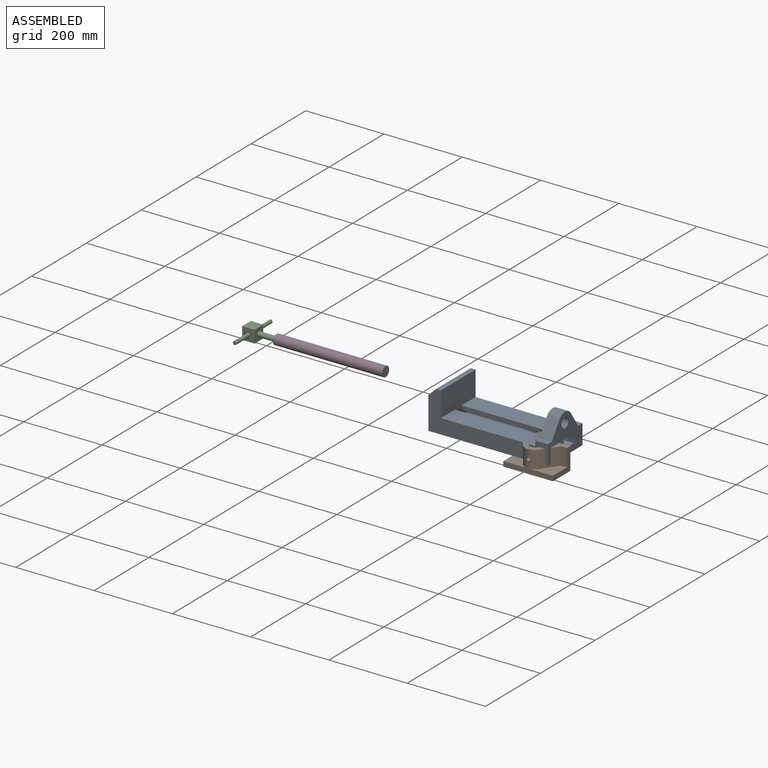
[diagram: assembled view]
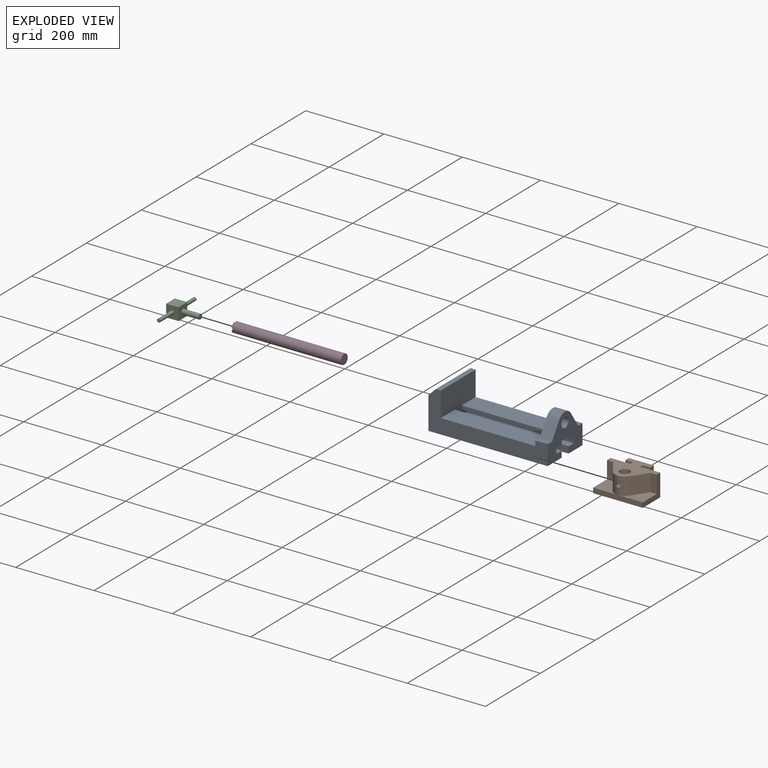
[diagram: exploded view]
GUIDED TOUR — MATED ASSEMBLY (Onshape document be445b46fe18cbd8478f2a0a, AutoMate assembly be445b46fe18cbd8478f2a0a_640654a862c169054bd643f5_fc026e90335b5fe00e9d29f9_default)

This assembly has 4 components, labeled P0..P3 below (a component is one placed occurrence of a part; the same part can appear more than once), held together by 2 mates. A mate is a constraint between two components; its type names the relative motion it leaves free:
  FASTENED — locks the two components together rigidly (no relative motion),
  SLIDER — leaves translation along the listed axis free.
Axis/direction vectors are unit vectors and 'through' points are millimeter coordinates, both in the assembly's world frame.

MATES
  1. SLIDER "Slider 1": P1 <-> P0, axis (1.000, 0.000, 0.000) through (229.29, 55.64, -25.93) mm
  2. FASTENED "Fastened 1": P2 <-> P3, direction (1.000, 0.000, 0.000) through (-488.07, 76.21, -4.20) mm

ASSEMBLY ORDER
  1. P0 — the base component [order verified]
  2. P1 [order verified]
  3. P3 [order verified]
  4. P2 [order verified]
Order-tag legend:
  [order verified] — this step's position reverses a verified removal order: the component was checked to insert without passing through the ones already placed.

Of the 4 components, 3 carry the full construction recipe — the FeatureScript program that regenerates the part's solid from scratch; the rest are supplied as boundary geometry only.
Each toured component is shown spotlighted twice — in the assembled view, then in the exploded view, where a leader line traces a displaced component back to its assembled socket (saturated green if recipe-attached, orange if geometry-only; every other component desaturated gray) — followed by its recipe or geometry summary and the mates that hold it.
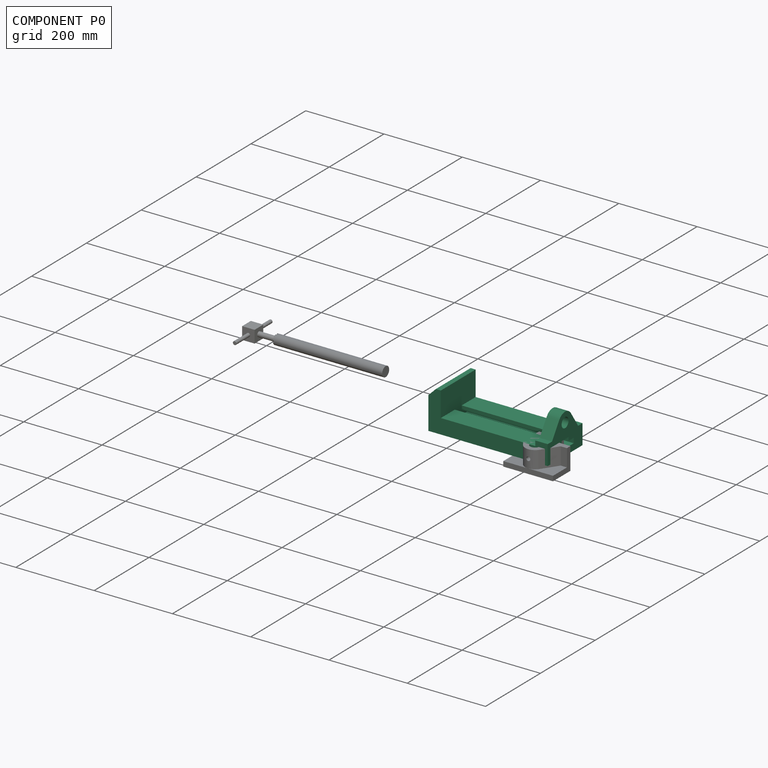
[diagram: component P0 — assembled]
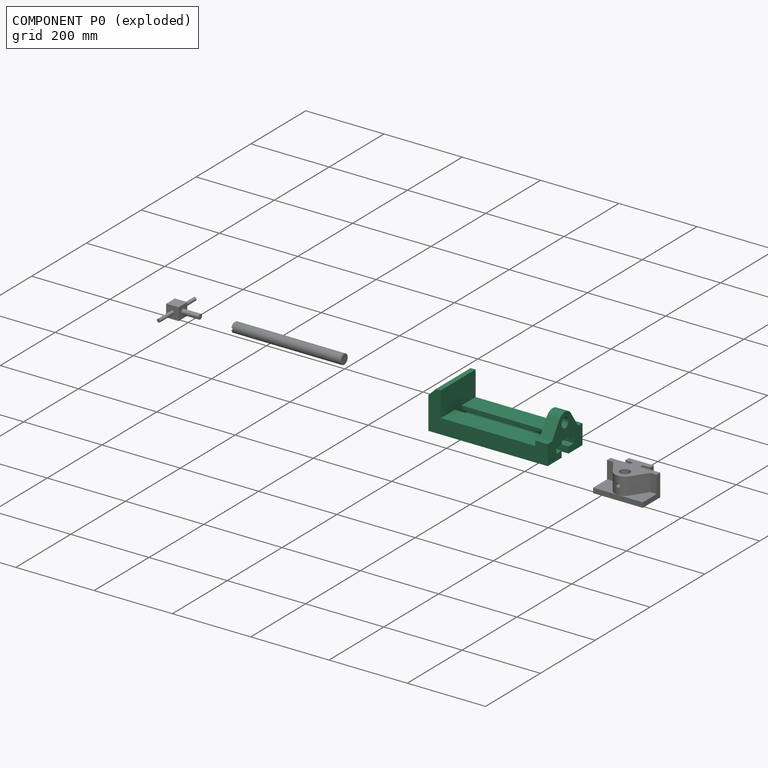
[diagram: component P0 — exploded]
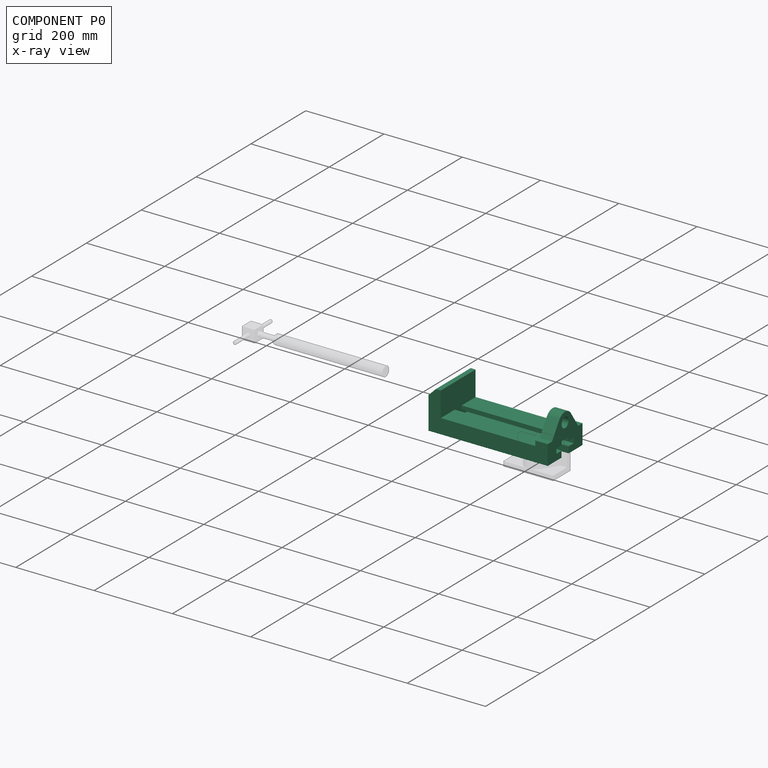
[diagram: component P0 — x-ray view]
COMPONENT P0 — recipe-attached (CADFS 00119810, mesh-verified: the recipe's output STEP matches this component's geometry to below the mesh-comparison resolution (tessellation chordal tolerance ~0.518 mm)).
Held by: SLIDER mate "Slider 1" to P1.
Construction recipe (FeatureScript — the CAD program that rebuilds this solid; sketch coordinates are in the units given by the * unit suffixes, e.g. mm):

FeatureScript 1511;
import(path : "onshape/std/geometry.fs", version : "1511.0");
import(path : "onshape/std/common.fs", version : "1511.0");
const mm = millimeter;
const VERTEX = EntityType.VERTEX;
const EDGE = EntityType.EDGE;
const FACE = EntityType.FACE;
const BODY = EntityType.BODY;
function v(x, y){return vector(x, y);}
function OD(order){return orderDisambiguation(order);}
function OSD(set){return originalSetDisambiguation(set);}
function TD(topology){return topologyDisambiguation(topology);}
function TDD(query){return trueDependencyDisambiguation(query);}
function sQuery(a, b, c) {return sketchEntityQuery(a, b, c);}

annotation { "Feature Type Name" : "Feature", "Feature Type Description" : "" }
export const myFeature = defineFeature(function(context is Context, id is Id, definition is map)
    precondition{}
    {
        {
            var Q0;
            Q0=qCreatedBy(makeId("Front.planeOp"),FACE);
            var sketch = newSketch(context, id + "F0", { "sketchPlane" : qUnion([Q0])});
            skLineSegment(sketch, "E0.bottom", {"start": v(0, 0) * mm, "end": v(304.8, 0) * mm});
            skLineSegment(sketch, "E0.top", {"start": v(0, 101.6) * mm, "end": v(304.8, 101.6) * mm});
            skLineSegment(sketch, "E0.left", {"start": v(0, 0) * mm, "end": v(0, 101.6) * mm});
            skLineSegment(sketch, "E0.right", {"start": v(304.8, 0) * mm, "end": v(304.8, 101.6) * mm});
            skLineSegment(sketch, "E1", {"start": v(31.75, 38.1) * mm, "end": v(273.05, 38.1) * mm});
            skLineSegment(sketch, "E2", {"start": v(31.75, 101.6) * mm, "end": v(31.75, 0) * mm});
            skLineSegment(sketch, "E3", {"start": v(273.05, 101.6) * mm, "end": v(273.05, 0) * mm});
            skLineSegment(sketch, "E4", {"start": v(0, 82.55) * mm, "end": v(19.05, 101.6) * mm});
            skSolve(sketch);
        }
        {
            var Q0;
            {var subQ4=sQuery(id+"F0.wireOp",EDGE,"E0.right");Q0=makeQuery(id+"F0.imprint","IMPRINT",FACE,{"disambiguationData":[TD([[makeQuery(id+"F0.imprint","IMPRINT",EDGE,{"derivedFrom":subQ4}),1.0]])]});}
            var Q1;
            {var subQ7=sQuery(id+"F0.wireOp",EDGE,"E4");Q1=makeQuery(id+"F0.imprint","IMPRINT",FACE,{"disambiguationData":[TD([[makeQuery(id+"F0.imprint","IMPRINT",EDGE,{"derivedFrom":subQ7}),-1.0]])]});}
            var Q2;
            {var subQ5=sQuery(id+"F0.wireOp",EDGE,"E1");Q2=makeQuery(id+"F0.imprint","IMPRINT",FACE,{"disambiguationData":[TD([[makeQuery(id+"F0.imprint","IMPRINT",EDGE,{"derivedFrom":subQ5}),-1.0]])]});}
            extrude(context, id + "F1", {"entities" : qUnion([Q0, Q1, Q2]), "endBound" : BoundingType.SYMMETRIC, "depth" : 127 * mm});
        }
        {
            var Q0;
            Q0=makeQuery(id+"F1.opExtrude","SWEPT_FACE",FACE,{"disambiguationData":[OSD([sQuery(id+"F0.wireOp",EDGE,"E0.right")])]});
            var sketch = newSketch(context, id + "F2", { "sketchPlane" : qUnion([Q0])});
            skLineSegment(sketch, "E5", {"start": v(-12.7, 0) * mm, "end": v(12.7, 0) * mm});
            skLineSegment(sketch, "E6", {"start": v(12.7, 0) * mm, "end": v(12.7, 16.51) * mm});
            skLineSegment(sketch, "E7", {"start": v(12.7, 16.5) * mm, "end": v(31.75, 16.5) * mm});
            skLineSegment(sketch, "E8", {"start": v(31.75, 16.51) * mm, "end": v(31.75, 29.21) * mm});
            skLineSegment(sketch, "E9", {"start": v(31.75, 29.21) * mm, "end": v(12.7, 29.21) * mm});
            skLineSegment(sketch, "E10", {"start": v(12.7, 29.21) * mm, "end": v(12.7, 38.1) * mm});
            skLineSegment(sketch, "E11", {"start": v(12.7, 38.1) * mm, "end": v(-12.7, 38.1) * mm});
            skLineSegment(sketch, "E12", {"start": v(-12.7, 38.1) * mm, "end": v(-12.7, 29.2) * mm});
            skLineSegment(sketch, "E13", {"start": v(-12.7, 29.21) * mm, "end": v(-31.75, 29.2) * mm});
            skLineSegment(sketch, "E14", {"start": v(-31.75, 29.21) * mm, "end": v(-31.75, 16.51) * mm});
            skLineSegment(sketch, "E15", {"start": v(-31.75, 16.5) * mm, "end": v(-12.7, 16.51) * mm});
            skLineSegment(sketch, "E16", {"start": v(-12.7, 16.51) * mm, "end": v(-12.7, 0) * mm});
            skLineSegment(sketch, "E17", {"start": v(0, 101.6) * mm, "end": v(0, 0) * mm, "construction": true});
            skLineSegment(sketch, "E18", {"start": v(-63.5, 0) * mm, "end": v(-63.5, 50.8) * mm});
            skLineSegment(sketch, "E19", {"start": v(-63.5, 50.8) * mm, "end": v(-47.62, 50.8) * mm});
            skLineSegment(sketch, "E20", {"start": v(63.5, 0) * mm, "end": v(63.5, 50.8) * mm});
            skLineSegment(sketch, "E21", {"start": v(63.5, 50.8) * mm, "end": v(47.63, 50.8) * mm});
            skCircle(sketch, "E22", {"center": v(0, 76.2) * mm, "radius": 12.7 * mm});
            skLineSegment(sketch, "E23", {"start": v(-47.63, 50.8) * mm, "end": v(-21.1, 90.35) * mm});
            skLineSegment(sketch, "E24", {"start": v(47.63, 50.8) * mm, "end": v(21.1, 90.35) * mm});
            skArc(sketch, "E25", {"start": v(21.1, 90.35) * mm, "mid": v(0, 101.6) * mm, "end": v(-21.1, 90.35) * mm});
            skSolve(sketch);
        }
        {
            var Q0;
            Q0 = qSketchRegion(id + "F2", true);
            var Q1;
            {var subQ5=sQuery(id+"F2.wireOp",EDGE,"E19");Q1=makeQuery(id+"F2.imprint","IMPRINT",FACE,{"disambiguationData":[TD([[makeQuery(id+"F2.imprint","IMPRINT",EDGE,{"derivedFrom":subQ5}),1.0]])]});}
            var Q2;
            {var subQ4=sQuery(id+"F2.wireOp",EDGE,"E21");Q2=makeQuery(id+"F2.imprint","IMPRINT",FACE,{"disambiguationData":[TD([[makeQuery(id+"F2.imprint","IMPRINT",EDGE,{"derivedFrom":subQ4}),-1.0]])]});}
            extrude(context, id + "F3", {"entities" : qUnion([Q0, Q1, Q2]), "operationType" : NewBodyOperationType.REMOVE, "endBound" : BoundingType.UP_TO_NEXT, "oppositeDirection" : true, "depth" : 25.4 * mm});
        }
        {
            var Q0;
            Q0=makeQuery(id+"F1.opExtrude","SWEPT_FACE",FACE,{"disambiguationData":[OSD([sQuery(id+"F0.wireOp",EDGE,"E0.left")])]});
            var sketch = newSketch(context, id + "F4", { "sketchPlane" : qUnion([Q0])});
            skLineSegment(sketch, "E26", {"start": v(-12.7, 0) * mm, "end": v(-12.7, 16.5) * mm});
            skLineSegment(sketch, "E27", {"start": v(-12.7, 16.5) * mm, "end": v(-31.75, 16.5) * mm});
            skLineSegment(sketch, "E28", {"start": v(-31.75, 16.5) * mm, "end": v(-31.75, 29.21) * mm});
            skLineSegment(sketch, "E29", {"start": v(-31.75, 29.21) * mm, "end": v(-12.7, 29.21) * mm});
            skLineSegment(sketch, "E30", {"start": v(-12.7, 29.21) * mm, "end": v(-12.7, 38.1) * mm});
            skLineSegment(sketch, "E31", {"start": v(-12.7, 38.1) * mm, "end": v(12.7, 38.1) * mm});
            skLineSegment(sketch, "E32", {"start": v(12.7, 38.1) * mm, "end": v(12.7, 29.21) * mm});
            skLineSegment(sketch, "E33", {"start": v(12.7, 29.21) * mm, "end": v(31.75, 29.21) * mm});
            skLineSegment(sketch, "E34", {"start": v(31.75, 29.21) * mm, "end": v(31.75, 16.5) * mm});
            skLineSegment(sketch, "E35", {"start": v(31.75, 16.5) * mm, "end": v(12.7, 16.51) * mm});
            skLineSegment(sketch, "E36", {"start": v(12.7, 16.51) * mm, "end": v(12.7, 0) * mm});
            skLineSegment(sketch, "E37", {"start": v(12.7, 0) * mm, "end": v(-12.7, 0) * mm});
            skSolve(sketch);
        }
        {
            var Q0;
            Q0 = qSketchRegion(id + "F4", true);
            extrude(context, id + "F5", {"entities" : qUnion([Q0]), "operationType" : NewBodyOperationType.ADD, "oppositeDirection" : true, "depth" : 31.75 * mm});
        }
    });
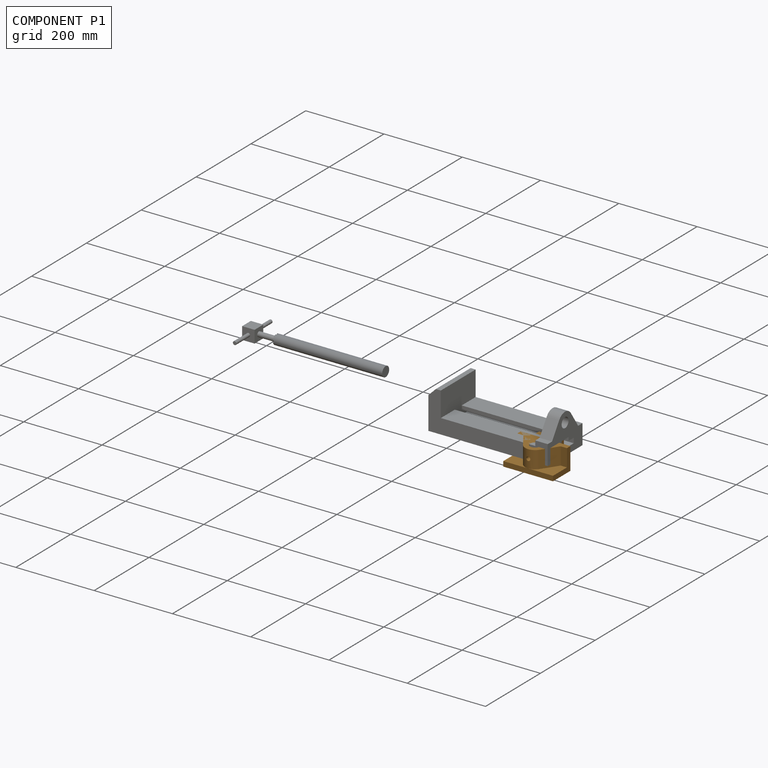
[diagram: component P1 — assembled]
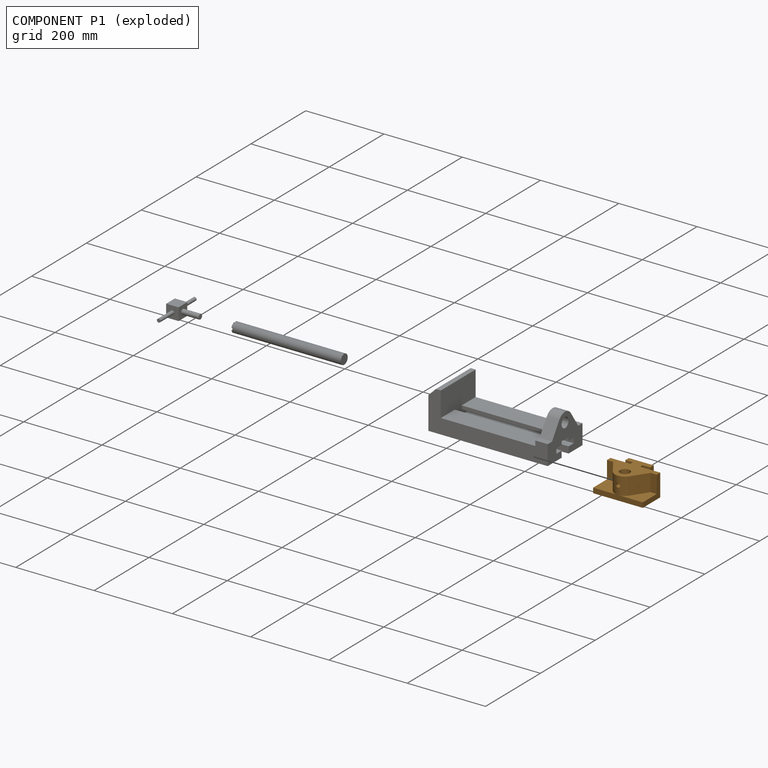
[diagram: component P1 — exploded]
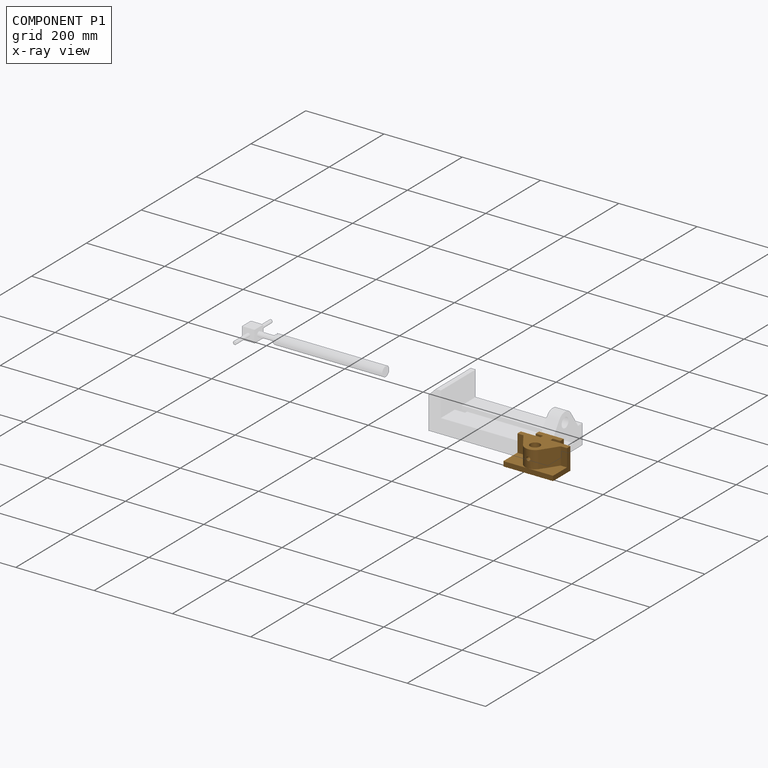
[diagram: component P1 — x-ray view]
COMPONENT P1 — geometry summary (no construction recipe available for this part):
  bounding box: 127.0 x 85.1 x 57.2 mm
  B-rep topology: 1 solid, 23 faces, 126 edges
  volume: 338750 mm^3 (55% of its bounding box)
  symmetry: mirror-symmetric across its x mid-plane
Held by: SLIDER mate "Slider 1" to P0.
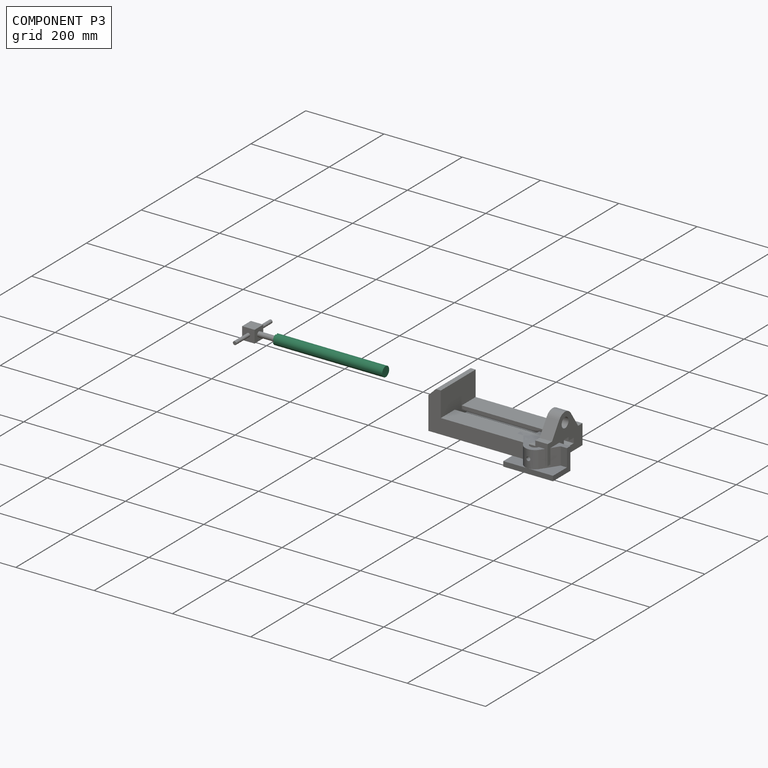
[diagram: component P3 — assembled]
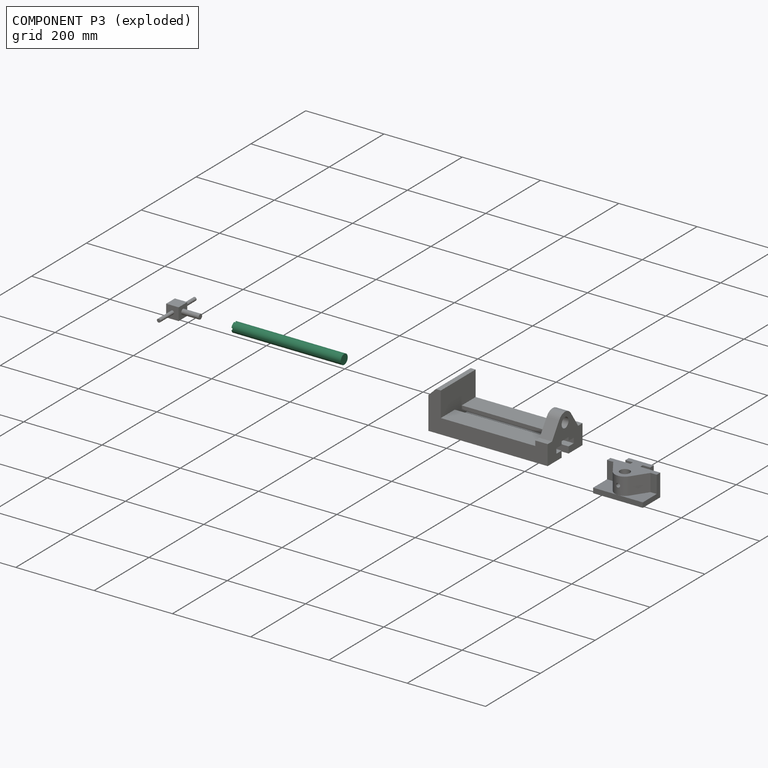
[diagram: component P3 — exploded]
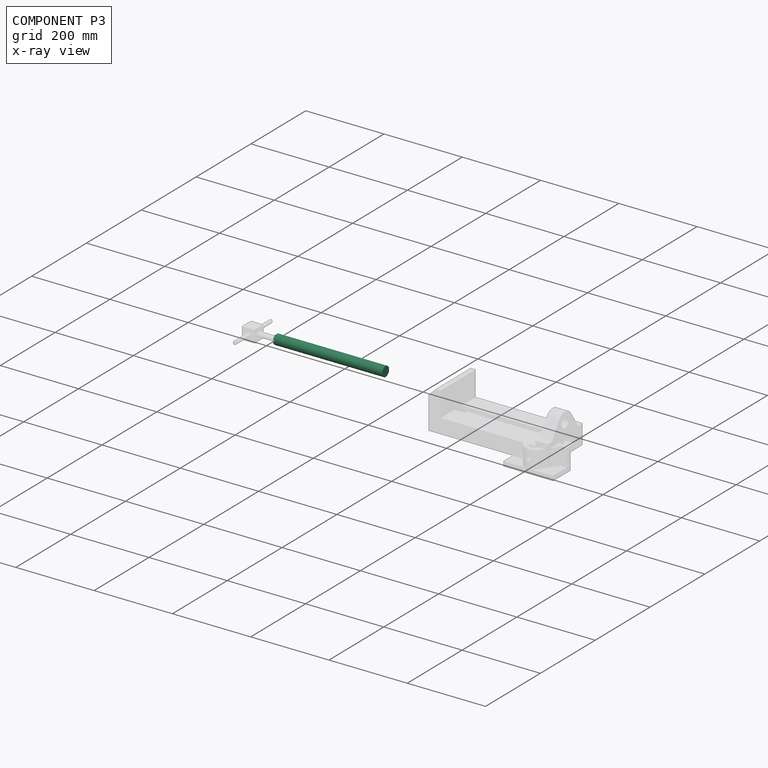
[diagram: component P3 — x-ray view]
COMPONENT P3 — recipe-attached (CADFS 00119812, mesh-verified: the recipe's output STEP matches this component's geometry to below the mesh-comparison resolution (tessellation chordal tolerance ~0.423 mm)).
Held by: FASTENED mate "Fastened 1" to P2.
Construction recipe (FeatureScript — the CAD program that rebuilds this solid; sketch coordinates are in the units given by the * unit suffixes, e.g. mm):

FeatureScript 1511;
import(path : "onshape/std/geometry.fs", version : "1511.0");
import(path : "onshape/std/common.fs", version : "1511.0");
const mm = millimeter;
const VERTEX = EntityType.VERTEX;
const EDGE = EntityType.EDGE;
const FACE = EntityType.FACE;
const BODY = EntityType.BODY;
function v(x, y){return vector(x, y);}
function OD(order){return orderDisambiguation(order);}
function OSD(set){return originalSetDisambiguation(set);}
function TD(topology){return topologyDisambiguation(topology);}
function TDD(query){return trueDependencyDisambiguation(query);}
function sQuery(a, b, c) {return sketchEntityQuery(a, b, c);}

annotation { "Feature Type Name" : "Feature", "Feature Type Description" : "" }
export const myFeature = defineFeature(function(context is Context, id is Id, definition is map)
    precondition{}
    {
        {
            var Q0;
            Q0=qCreatedBy(makeId("Right.planeOp"),FACE);
            var sketch = newSketch(context, id + "F0", { "sketchPlane" : qUnion([Q0])});
            skCircle(sketch, "E0", {"center": v(0, 0) * mm, "radius": 12.7 * mm});
            skCircle(sketch, "E1", {"center": v(0, 0) * mm, "radius": 6.35 * mm});
            skLineSegment(sketch, "E2", {"start": v(-2.54, 12.44) * mm, "end": v(-2.54, 5.82) * mm});
            skLineSegment(sketch, "E3", {"start": v(2.54, 12.44) * mm, "end": v(2.54, 5.82) * mm});
            skLineSegment(sketch, "E4", {"start": v(12.44, 2.54) * mm, "end": v(5.82, 2.54) * mm});
            skLineSegment(sketch, "E5", {"start": v(12.44, -2.54) * mm, "end": v(5.82, -2.54) * mm});
            skLineSegment(sketch, "E6", {"start": v(2.54, -12.44) * mm, "end": v(2.54, -5.82) * mm});
            skLineSegment(sketch, "E7", {"start": v(-2.54, -5.82) * mm, "end": v(-2.54, -12.44) * mm});
            skLineSegment(sketch, "E8", {"start": v(-12.44, 2.54) * mm, "end": v(-5.82, 2.54) * mm});
            skLineSegment(sketch, "E9", {"start": v(-12.44, -2.54) * mm, "end": v(-5.82, -2.54) * mm});
            skSolve(sketch);
        }
        {
            var Q0;
            Q0 = qSketchRegion(id + "F0", true);
            var Q1;
            {var subQ0=sQuery(id+"F0.wireOp",EDGE,"E1");var subQ4=makeQuery(id+"F0.imprint","INTERSECT",VERTEX,{"derivedFrom":[subQ0,sQuery(id+"F0.wireOp",EDGE,"E3")]});Q1=makeQuery(id+"F0.imprint","IMPRINT",FACE,{"disambiguationData":[TD([[makeQuery(id+"F0.imprint","IMPRINT",EDGE,{"disambiguationData":[TD([[subQ4,1.0]])],"derivedFrom":subQ0}),1.0]])]});}
            extrude(context, id + "F1", {"entities" : qUnion([Q0, Q1]), "endBound" : BoundingType.SYMMETRIC, "depth" : 207.9 * mm});
        }
        {
            var Q0;
            Q0=makeQuery(id+"F1.opExtrude","CAP_FACE",FACE,{"disambiguationData":[OSD([sQuery(id+"F0.wireOp",EDGE,"E0")])],"isStart":false});
            var sketch = newSketch(context, id + "F2", { "sketchPlane" : qUnion([Q0])});
            skCircle(sketch, "E10", {"center": v(0, 0) * mm, "radius": 6.35 * mm});
            skSolve(sketch);
        }
        {
            var Q0;
            Q0=makeQuery(id+"F2.imprint","IMPRINT",FACE,{"disambiguationData":[TD([[makeQuery(id+"F2.imprint","IMPRINT",EDGE,{"derivedFrom":sQuery(id+"F2.wireOp",EDGE,"E10")}),-1.0]])]});
            var sketch = newSketch(context, id + "F3", { "sketchPlane" : qUnion([Q0])});
            skCircle(sketch, "E11", {"center": v(0, 0) * mm, "radius": 12.7 * mm});
            skSolve(sketch);
        }
        {
            var Q0;
            Q0 = qSketchRegion(id + "F3", true);
            extrude(context, id + "F4", {"entities" : qUnion([Q0]), "operationType" : NewBodyOperationType.ADD, "depth" : 19.05 * mm});
        }
        {
            var Q0;
            Q0=makeQuery(id+"F4.opExtrude","CAP_FACE",FACE,{"disambiguationData":[OSD([sQuery(id+"F3.wireOp",EDGE,"E11")])],"isStart":false});
            var sketch = newSketch(context, id + "F5", { "sketchPlane" : qUnion([Q0])});
            skCircle(sketch, "E12", {"center": v(0, 0) * mm, "radius": 6.35 * mm});
            skCircle(sketch, "E13", {"center": v(0, 0) * mm, "radius": 12.7 * mm});
            skLineSegment(sketch, "E14", {"start": v(-2.54, 5.82) * mm, "end": v(-2.54, 12.44) * mm});
            skLineSegment(sketch, "E15", {"start": v(2.54, 5.82) * mm, "end": v(2.54, 12.44) * mm});
            skLineSegment(sketch, "E16", {"start": v(12.44, -2.54) * mm, "end": v(5.82, -2.54) * mm});
            skLineSegment(sketch, "E17", {"start": v(2.54, -5.82) * mm, "end": v(2.54, -12.44) * mm});
            skLineSegment(sketch, "E18", {"start": v(-2.54, -5.82) * mm, "end": v(-2.54, -12.44) * mm});
            skLineSegment(sketch, "E19", {"start": v(-12.44, 2.54) * mm, "end": v(-5.82, 2.54) * mm});
            skLineSegment(sketch, "E20", {"start": v(-12.44, -2.54) * mm, "end": v(-5.82, -2.54) * mm});
            skLineSegment(sketch, "E21", {"start": v(5.82, 2.54) * mm, "end": v(12.44, 2.54) * mm});
            skSolve(sketch);
        }
        {
            var Q0;
            {var subQ0=sQuery(id+"F5.wireOp",EDGE,"E12");var subQ4=makeQuery(id+"F5.imprint","INTERSECT",VERTEX,{"derivedFrom":[subQ0,sQuery(id+"F5.wireOp",EDGE,"E15")]});Q0=makeQuery(id+"F5.imprint","IMPRINT",FACE,{"disambiguationData":[TD([[makeQuery(id+"F5.imprint","IMPRINT",EDGE,{"disambiguationData":[TD([[subQ4,1.0]])],"derivedFrom":subQ0}),1.0]])]});}
            extrude(context, id + "F6", {"entities" : qUnion([Q0]), "operationType" : NewBodyOperationType.REMOVE, "oppositeDirection" : true, "depth" : 25.4 * mm});
        }
        {
            var Q0;
            Q0=makeQuery(id+"F4.opExtrude","CAP_FACE",FACE,{"disambiguationData":[OSD([sQuery(id+"F3.wireOp",EDGE,"E11")])],"isStart":false});
            var sketch = newSketch(context, id + "F7", { "sketchPlane" : qUnion([Q0])});
            skLineSegment(sketch, "E22", {"start": v(-2.54, 12.44) * mm, "end": v(-2.54, 5.82) * mm});
            skLineSegment(sketch, "E23", {"start": v(2.54, 12.44) * mm, "end": v(2.54, 5.82) * mm});
            skLineSegment(sketch, "E24", {"start": v(5.82, 2.54) * mm, "end": v(12.44, 2.54) * mm});
            skLineSegment(sketch, "E25", {"start": v(5.82, -2.54) * mm, "end": v(12.44, -2.54) * mm});
            skLineSegment(sketch, "E26", {"start": v(2.54, -5.82) * mm, "end": v(2.54, -12.44) * mm});
            skLineSegment(sketch, "E27", {"start": v(-2.54, -5.82) * mm, "end": v(-2.54, -12.44) * mm});
            skLineSegment(sketch, "E28", {"start": v(-5.82, 2.54) * mm, "end": v(-12.44, 2.54) * mm});
            skLineSegment(sketch, "E29", {"start": v(-5.82, -2.54) * mm, "end": v(-12.44, -2.54) * mm});
            skSolve(sketch);
        }
        {
            var Q0;
            Q0 = qSketchRegion(id + "F7", true);
            var Q1;
            {var subQ0=sQuery(id+"F7.wireOp",EDGE,"E22");Q1=makeQuery(id+"F7.imprint","IMPRINT",FACE,{"disambiguationData":[TD([[makeQuery(id+"F7.imprint","IMPRINT",EDGE,{"derivedFrom":subQ0}),1.0]])]});}
            var Q2;
            {var subQ0=sQuery(id+"F7.wireOp",EDGE,"E24");Q2=makeQuery(id+"F7.imprint","IMPRINT",FACE,{"disambiguationData":[TD([[makeQuery(id+"F7.imprint","IMPRINT",EDGE,{"derivedFrom":subQ0}),-1.0]])]});}
            var Q3;
            {var subQ0=sQuery(id+"F7.wireOp",EDGE,"E26");Q3=makeQuery(id+"F7.imprint","IMPRINT",FACE,{"disambiguationData":[TD([[makeQuery(id+"F7.imprint","IMPRINT",EDGE,{"derivedFrom":subQ0}),-1.0]])]});}
            var Q4;
            {var subQ0=sQuery(id+"F7.wireOp",EDGE,"E28");Q4=makeQuery(id+"F7.imprint","IMPRINT",FACE,{"disambiguationData":[TD([[makeQuery(id+"F7.imprint","IMPRINT",EDGE,{"derivedFrom":subQ0}),1.0]])]});}
            extrude(context, id + "F8", {"entities" : qUnion([Q0, Q1, Q2, Q3, Q4]), "operationType" : NewBodyOperationType.REMOVE, "oppositeDirection" : true, "depth" : 2.54 * mm});
        }
        {
            var Q0;
            Q0=makeQuery(id+"F1.opExtrude","CAP_FACE",FACE,{"disambiguationData":[OSD([sQuery(id+"F0.wireOp",EDGE,"E0")])],"isStart":true});
            var sketch = newSketch(context, id + "F9", { "sketchPlane" : qUnion([Q0])});
            skCircle(sketch, "E30", {"center": v(0, 0) * mm, "radius": 12.7 * mm});
            skSolve(sketch);
        }
        {
            var Q0;
            Q0 = qSketchRegion(id + "F9", true);
            extrude(context, id + "F10", {"entities" : qUnion([Q0]), "operationType" : NewBodyOperationType.ADD, "depth" : 52.45 * mm});
        }
    });
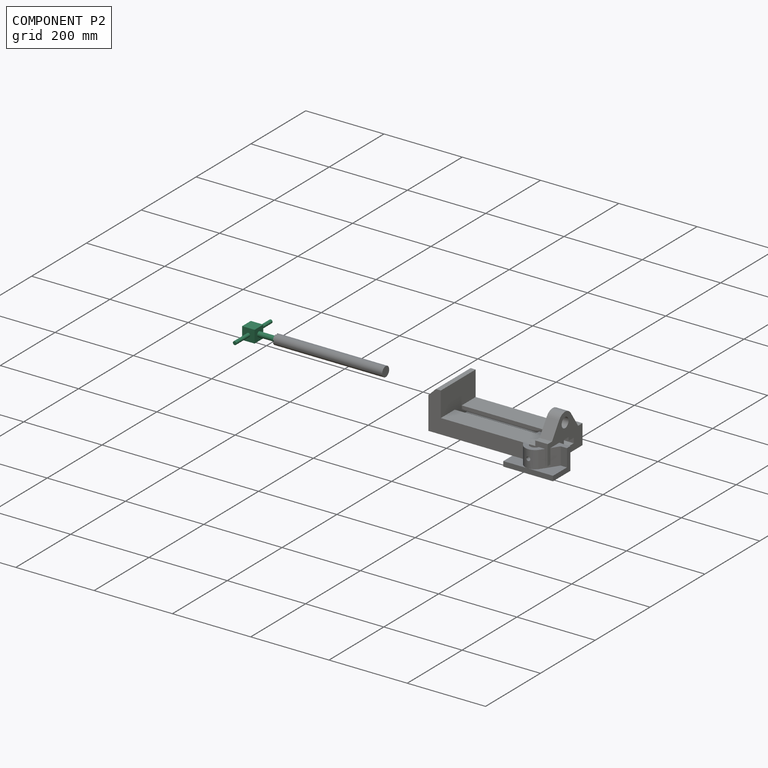
[diagram: component P2 — assembled]
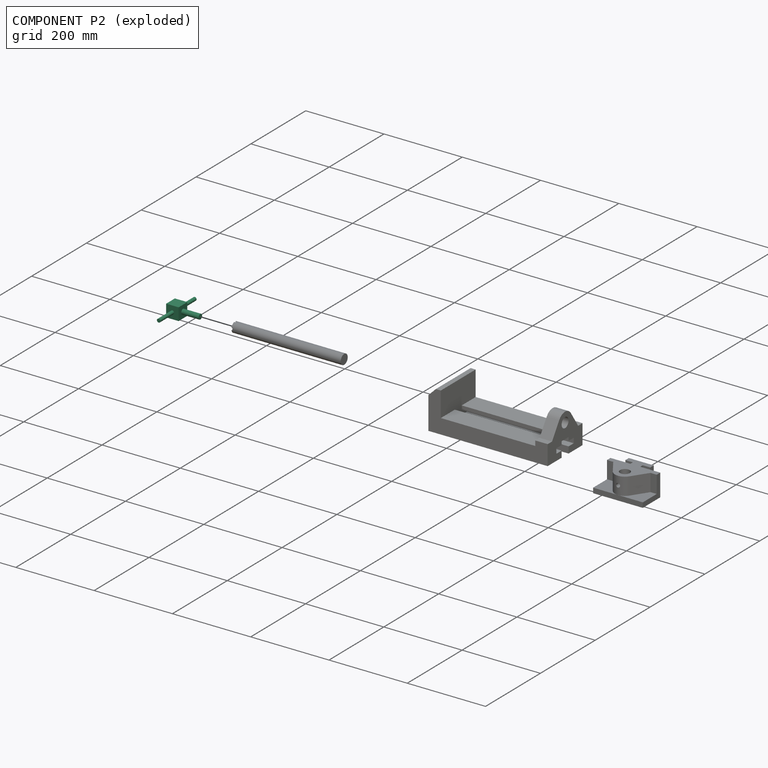
[diagram: component P2 — exploded]
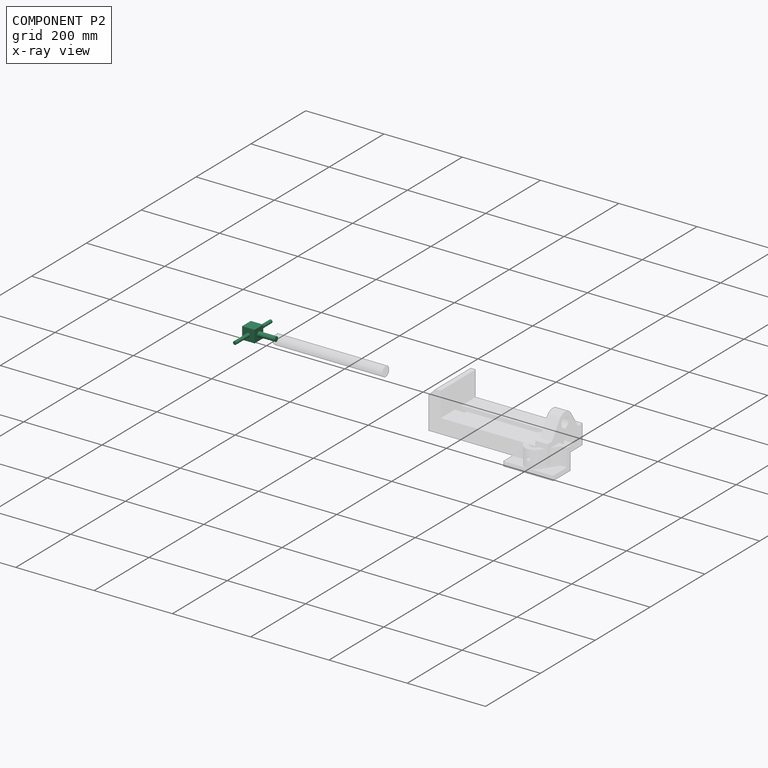
[diagram: component P2 — x-ray view]
COMPONENT P2 — recipe-attached (CADFS 00119813, mesh-verified: the recipe's output STEP matches this component's geometry to below the mesh-comparison resolution (tessellation chordal tolerance ~0.234 mm)).
Held by: FASTENED mate "Fastened 1" to P3.
Construction recipe (FeatureScript — the CAD program that rebuilds this solid; sketch coordinates are in the units given by the * unit suffixes, e.g. mm):

FeatureScript 1511;
import(path : "onshape/std/geometry.fs", version : "1511.0");
import(path : "onshape/std/common.fs", version : "1511.0");
const mm = millimeter;
const VERTEX = EntityType.VERTEX;
const EDGE = EntityType.EDGE;
const FACE = EntityType.FACE;
const BODY = EntityType.BODY;
function v(x, y){return vector(x, y);}
function OD(order){return orderDisambiguation(order);}
function OSD(set){return originalSetDisambiguation(set);}
function TD(topology){return topologyDisambiguation(topology);}
function TDD(query){return trueDependencyDisambiguation(query);}
function sQuery(a, b, c) {return sketchEntityQuery(a, b, c);}

annotation { "Feature Type Name" : "Feature", "Feature Type Description" : "" }
export const myFeature = defineFeature(function(context is Context, id is Id, definition is map)
    precondition{}
    {
        {
            var Q0;
            Q0=qCreatedBy(makeId("Front.planeOp"),FACE);
            var sketch = newSketch(context, id + "F0", { "sketchPlane" : qUnion([Q0])});
            skLineSegment(sketch, "E0.bottom", {"start": v(0, 0) * mm, "end": v(-31.75, 0) * mm});
            skLineSegment(sketch, "E0.top", {"start": v(0, 31.75) * mm, "end": v(-31.75, 31.75) * mm});
            skLineSegment(sketch, "E0.left", {"start": v(0, 0) * mm, "end": v(0, 31.75) * mm});
            skLineSegment(sketch, "E0.right", {"start": v(-31.75, 0) * mm, "end": v(-31.75, 31.75) * mm});
            skSolve(sketch);
        }
        {
            var Q0;
            Q0 = qSketchRegion(id + "F0", true);
            extrude(context, id + "F1", {"entities" : qUnion([Q0]), "endBound" : BoundingType.SYMMETRIC, "depth" : 31.75 * mm});
        }
        {
            var Q0;
            Q0=makeQuery(id+"F1.opExtrude","SWEPT_FACE",FACE,{"disambiguationData":[OSD([sQuery(id+"F0.wireOp",EDGE,"E0.left")])]});
            var sketch = newSketch(context, id + "F2", { "sketchPlane" : qUnion([Q0])});
            skCircle(sketch, "E1", {"center": v(0, 15.88) * mm, "radius": 4.45 * mm});
            skSolve(sketch);
        }
        {
            var Q0;
            Q0=makeQuery(id+"F2.imprint","IMPRINT",FACE,{"disambiguationData":[TD([[makeQuery(id+"F2.imprint","IMPRINT",EDGE,{"derivedFrom":sQuery(id+"F2.wireOp",EDGE,"E1")}),1.0]])]});
            extrude(context, id + "F3", {"entities" : qUnion([Q0]), "operationType" : NewBodyOperationType.ADD, "depth" : 50.16 * mm, "hasSecondDirection" : true, "secondDirectionOppositeDirection" : true, "secondDirectionDepth" : 81.9 * mm});
        }
        {
            var Q0;
            Q0=makeQuery(id+"F1.opExtrude","SWEPT_FACE",FACE,{"disambiguationData":[OSD([sQuery(id+"F0.wireOp",EDGE,"E0.bottom")])]});
            var sketch = newSketch(context, id + "F4", { "sketchPlane" : qUnion([Q0])});
            skCircle(sketch, "E2", {"center": v(-15.88, 0) * mm, "radius": 6.35 * mm});
            skPoint(sketch, "E2.centerSnap0", {"position": v(-15.88, -15.88) * mm});
            skSolve(sketch);
        }
        {
            var Q0;
            Q0 = qSketchRegion(id + "F4", true);
            extrude(context, id + "F5", {"entities" : qUnion([Q0]), "operationType" : NewBodyOperationType.ADD, "depth" : 44.45 * mm});
        }
    });
PROVENANCE & LICENSES
Assembly (occurrences, transforms, mates, per-part STEP geometry): AutoMate dataset, Zenodo record 7776208, CC0.
Construction recipes: CADFS (HuggingFace VladPyatov/CADFS, CC-BY-4.0, layered over the ABC dataset), FeatureScript reconstruction programs keyed by ABC model id.
Join: ABC meta listings map ABC model id -> Onshape documentId; within a shared document, parts are matched by geometric signature (bounding-box dims + volume at 0.1% relative tolerance, exact B-rep face/solid counts).
Verification: 3 of this assembly's 4 components carry a recipe attachment, and every attachment is mesh-verified: the CADFS STEP and the AutoMate member STEP were compared as meshes in their shared local frame (symmetric sampled-point-to-mesh distance); worst across the 3 attachments: below the mesh-comparison resolution (tessellation chordal tolerance ~0.518 mm) on a 345 mm part.
Renders: orthographic iso camera (az 35 / el 25); the floor grid conveys scale (grid pitch printed in each image; no ruler). In the exploded view each component is displaced by its stored offset vector: the offsets alone carry the explosion direction (mate normal/axis signs are not orientation cues and do not encode it), and separation distances are assigned per mate-chain, not proportionally to assembly-order depth.
